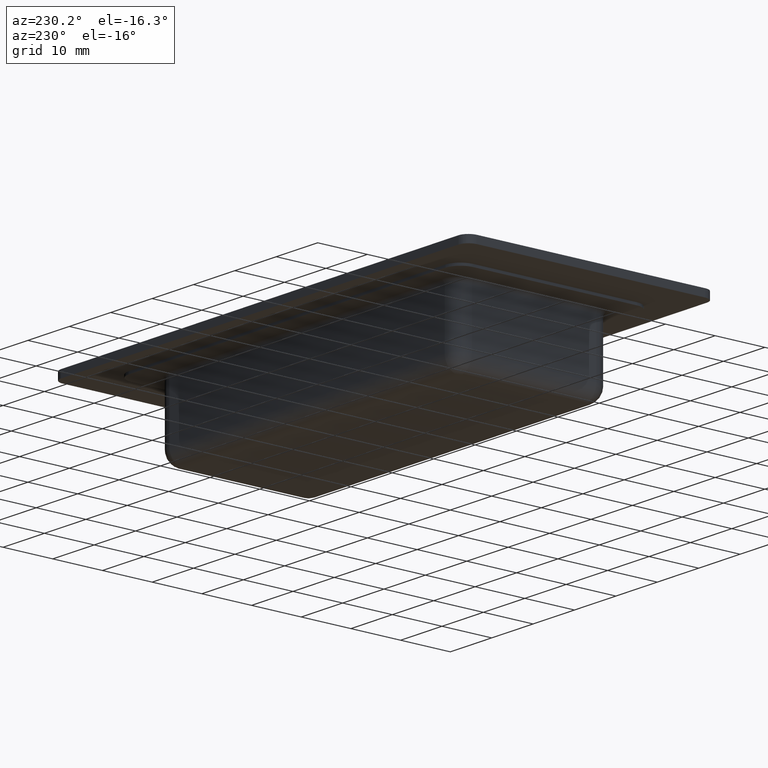
[diagram: clean part render]
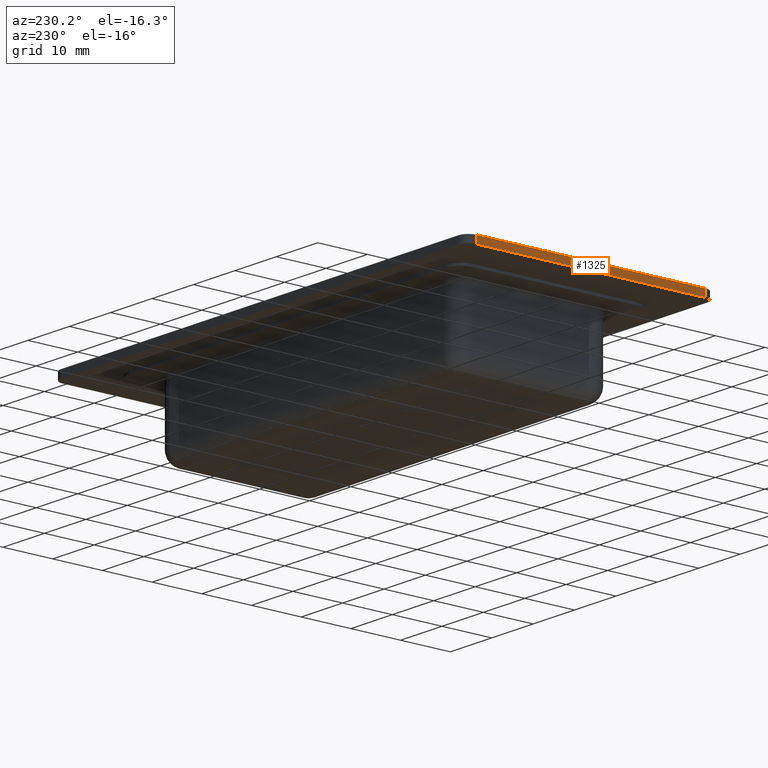
[diagram: same view with one face highlighted and labeled with its STEP entity id]
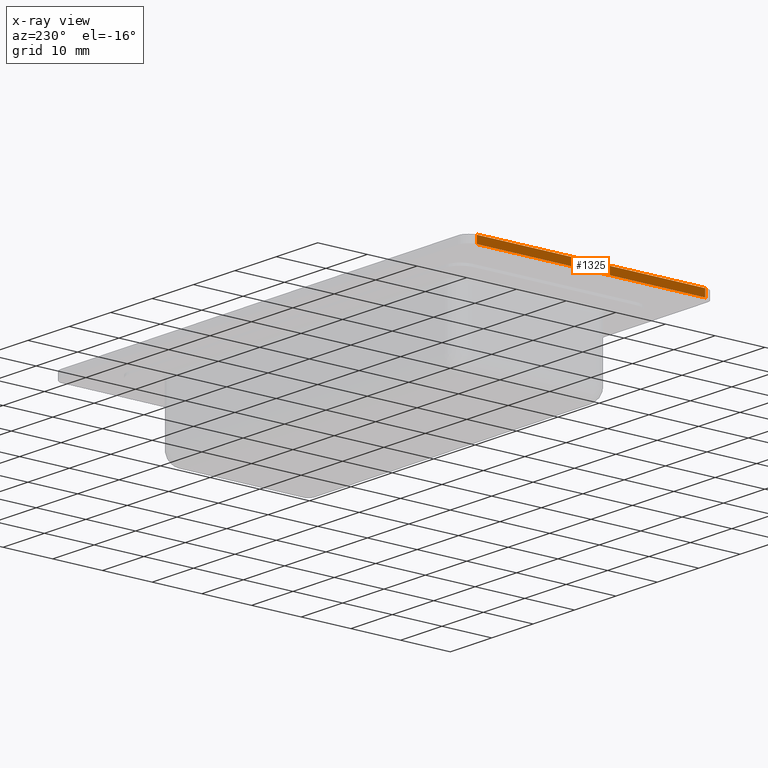
[diagram: x-ray of the same camera — body ghosted, the highlighted face saturated]
A machine part, auxiliary view. The second image highlights one B-rep face of the part: STEP entity #1325.
The next image is the same camera in x-ray: the body ghosted, the highlighted face saturated — about 0% of this face is hidden behind the body in this view.
In plain terms, the highlighted planar face has unit normal (-1, 0, 0).
Its self-contained STEP definition (entity closure, byte-faithful):
#87=LINE('',#2269,#195);
#106=LINE('',#2332,#214);
#116=LINE('',#2357,#224);
#117=LINE('',#2359,#225);
#195=VECTOR('',#1593,46.);
#214=VECTOR('',#1658,1.5);
#224=VECTOR('',#1686,1.5);
#225=VECTOR('',#1689,46.);
#303=PLANE('',#1432);
#345=FACE_OUTER_BOUND('',#432,.T.);
#432=EDGE_LOOP('',(#1017,#1018,#1019,#1020));
#604=VERTEX_POINT('',#2267);
#605=VERTEX_POINT('',#2268);
#626=VERTEX_POINT('',#2330);
#632=VERTEX_POINT('',#2355);
#728=EDGE_CURVE('',#604,#605,#87,.T.);
#760=EDGE_CURVE('',#626,#604,#106,.T.);
#773=EDGE_CURVE('',#632,#605,#116,.T.);
#774=EDGE_CURVE('',#626,#632,#117,.T.);
#1017=ORIENTED_EDGE('',*,*,#774,.T.);
#1018=ORIENTED_EDGE('',*,*,#773,.T.);
#1019=ORIENTED_EDGE('',*,*,#728,.F.);
#1020=ORIENTED_EDGE('',*,*,#760,.F.);
#1325=ADVANCED_FACE('',(#345),#303,.T.);
#1432=AXIS2_PLACEMENT_3D('',#2358,#1687,#1688);
#1593=DIRECTION('',(0.,-1.,0.));
#1658=DIRECTION('',(0.,0.,1.));
#1686=DIRECTION('',(0.,0.,1.));
#1687=DIRECTION('center_axis',(-1.,0.,0.));
#1688=DIRECTION('ref_axis',(0.,-1.,0.));
#1689=DIRECTION('',(0.,-1.,0.));
#2267=CARTESIAN_POINT('',(-50.,23.,1.5));
#2268=CARTESIAN_POINT('',(-50.,-23.,1.5));
#2269=CARTESIAN_POINT('',(-50.,23.,1.5));
#2330=CARTESIAN_POINT('',(-50.,23.,0.));
#2332=CARTESIAN_POINT('',(-50.,23.,0.));
#2355=CARTESIAN_POINT('',(-50.,-23.,0.));
#2357=CARTESIAN_POINT('',(-50.,-23.,0.));
#2358=CARTESIAN_POINT('Origin',(-50.,23.,0.));
#2359=CARTESIAN_POINT('',(-50.,23.,0.));